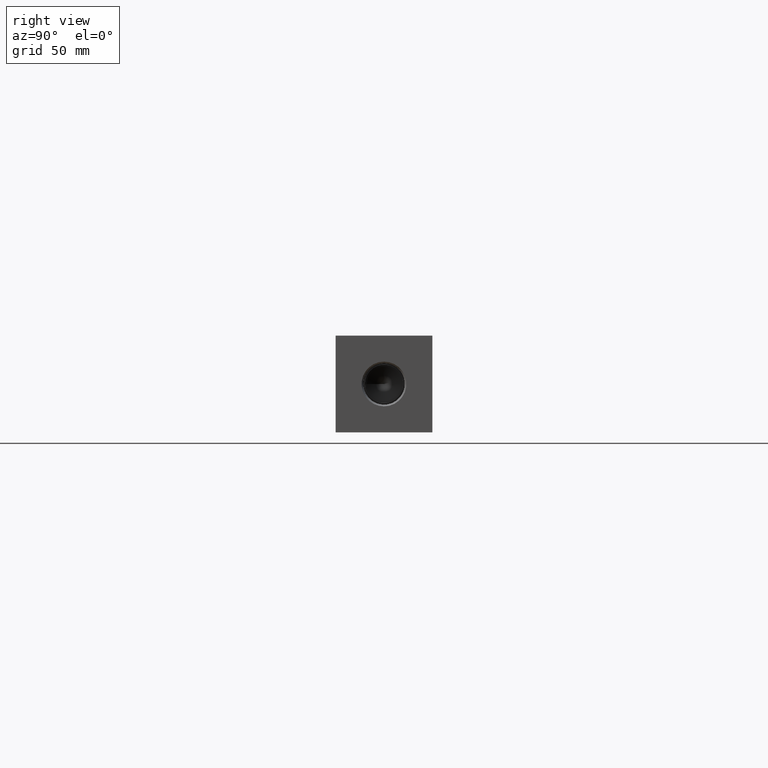
[diagram: clean part render]
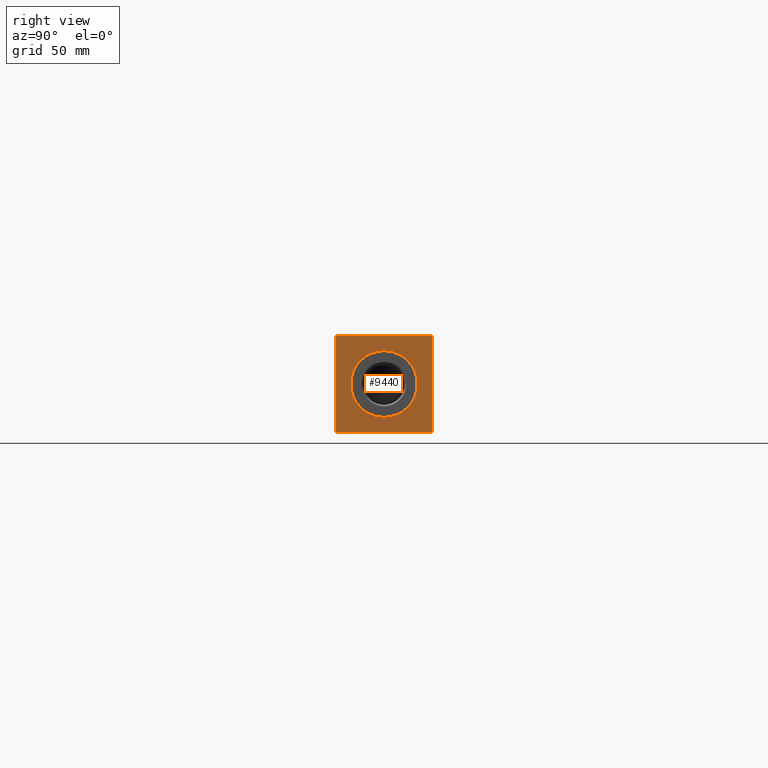
[diagram: same view with one face highlighted and labeled with its STEP entity id]
A machine part, right view. The second image highlights one B-rep face of the part: STEP entity #9440.
In plain terms, the highlighted planar face has unit normal (1, 0, 0).
Its self-contained STEP definition (entity closure, byte-faithful):
#426=CIRCLE('',#10085,15.3162);
#427=CIRCLE('',#10086,15.3162);
#526=FACE_BOUND('',#1826,.T.);
#771=PLANE('',#10132);
#1263=FACE_OUTER_BOUND('',#1825,.T.);
#1825=EDGE_LOOP('',(#8485,#8486,#8487,#8488));
#1826=EDGE_LOOP('',(#8489,#8490));
#2103=LINE('',#14687,#2890);
#2625=LINE('',#16516,#3412);
#2626=LINE('',#16519,#3413);
#2627=LINE('',#16520,#3414);
#2890=VECTOR('',#10521,10.);
#3412=VECTOR('',#12269,10.);
#3413=VECTOR('',#12272,10.);
#3414=VECTOR('',#12273,10.);
#3973=VERTEX_POINT('',#14684);
#3974=VERTEX_POINT('',#14686);
#4507=VERTEX_POINT('',#16418);
#4508=VERTEX_POINT('',#16419);
#4540=VERTEX_POINT('',#16514);
#4541=VERTEX_POINT('',#16518);
#5023=EDGE_CURVE('',#3973,#3974,#2103,.T.);
#5818=EDGE_CURVE('',#4507,#4508,#426,.T.);
#5819=EDGE_CURVE('',#4508,#4507,#427,.T.);
#5865=EDGE_CURVE('',#4540,#3974,#2625,.T.);
#5866=EDGE_CURVE('',#4541,#4540,#2626,.T.);
#5867=EDGE_CURVE('',#4541,#3973,#2627,.T.);
#8485=ORIENTED_EDGE('',*,*,#5866,.T.);
#8486=ORIENTED_EDGE('',*,*,#5865,.T.);
#8487=ORIENTED_EDGE('',*,*,#5023,.F.);
#8488=ORIENTED_EDGE('',*,*,#5867,.F.);
#8489=ORIENTED_EDGE('',*,*,#5818,.T.);
#8490=ORIENTED_EDGE('',*,*,#5819,.T.);
#9440=ADVANCED_FACE('',(#1263,#526),#771,.T.);
#10085=AXIS2_PLACEMENT_3D('',#16420,#12158,#12159);
#10086=AXIS2_PLACEMENT_3D('',#16421,#12160,#12161);
#10132=AXIS2_PLACEMENT_3D('',#16517,#12270,#12271);
#10521=DIRECTION('',(0.,1.,0.));
#12158=DIRECTION('center_axis',(-1.,0.,0.));
#12159=DIRECTION('ref_axis',(0.,0.,-1.));
#12160=DIRECTION('center_axis',(-1.,0.,0.));
#12161=DIRECTION('ref_axis',(0.,0.,-1.));
#12269=DIRECTION('',(0.,0.,1.));
#12270=DIRECTION('center_axis',(1.,0.,0.));
#12271=DIRECTION('ref_axis',(0.,1.,0.));
#12272=DIRECTION('',(0.,1.,0.));
#12273=DIRECTION('',(0.,0.,1.));
#14684=CARTESIAN_POINT('',(330.2,0.,44.45));
#14686=CARTESIAN_POINT('',(330.2,44.45,44.45));
#14687=CARTESIAN_POINT('',(330.2,0.,44.45));
#16418=CARTESIAN_POINT('',(330.2,22.225,6.9088));
#16419=CARTESIAN_POINT('',(330.2,22.225,37.5412));
#16420=CARTESIAN_POINT('Origin',(330.2,22.225,22.225));
#16421=CARTESIAN_POINT('Origin',(330.2,22.225,22.225));
#16514=CARTESIAN_POINT('',(330.2,44.45,0.));
#16516=CARTESIAN_POINT('',(330.2,44.45,0.));
#16517=CARTESIAN_POINT('Origin',(330.2,0.,0.));
#16518=CARTESIAN_POINT('',(330.2,0.,0.));
#16519=CARTESIAN_POINT('',(330.2,0.,0.));
#16520=CARTESIAN_POINT('',(330.2,0.,0.));